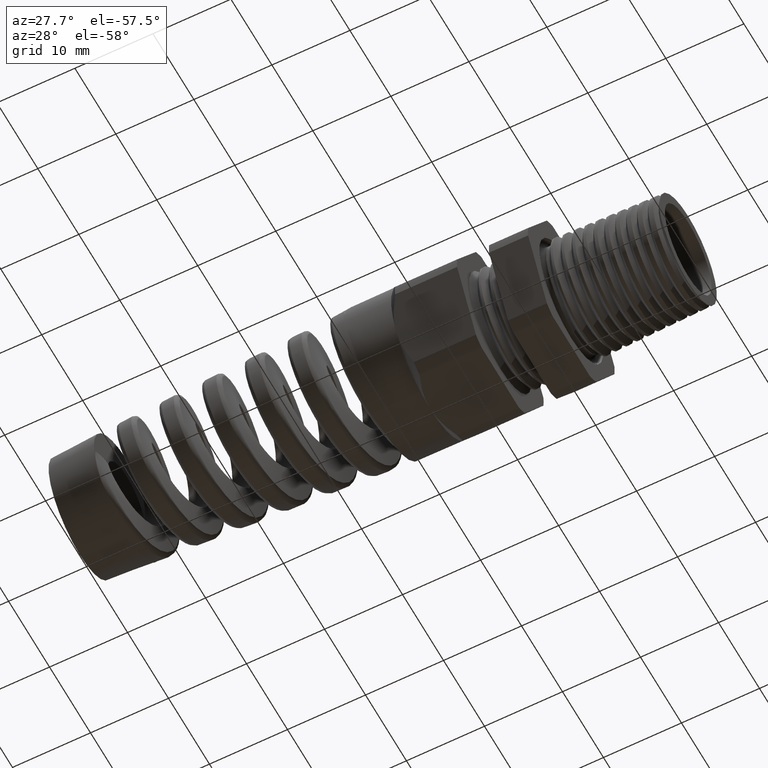
[diagram: clean part render]
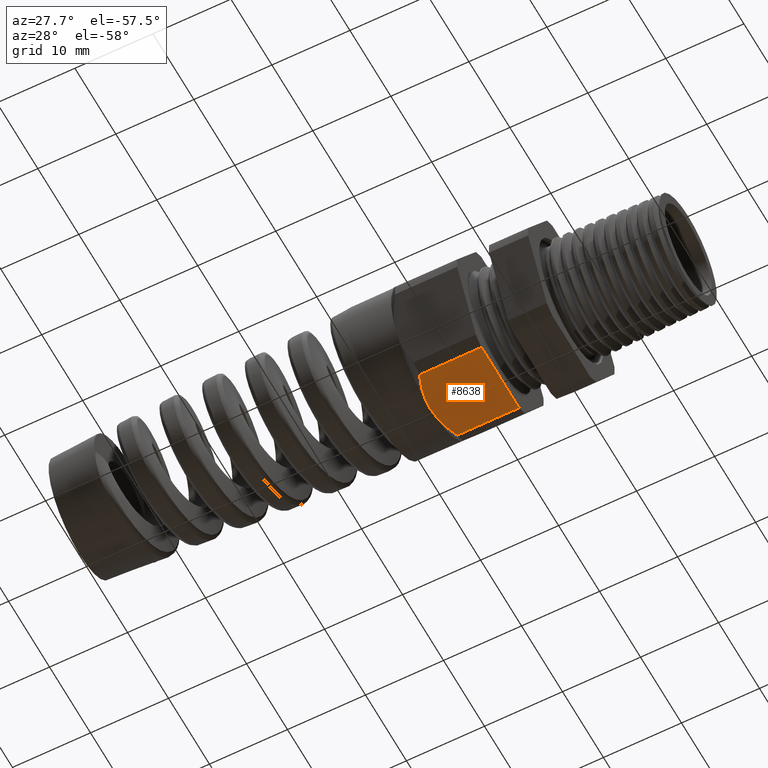
[diagram: same view with one face highlighted and labeled with its STEP entity id]
A machine part, auxiliary view. The second image highlights one B-rep face of the part: STEP entity #8638.
In plain terms, the highlighted planar face has unit normal (0, 0, -1).
Its self-contained STEP definition (entity closure, byte-faithful):
#2919 = CARTESIAN_POINT ( 'NONE',  ( -1.022519685039370100, 0.0000000000000000000, -0.3749999999999998900 ) ) ;
#6075 = DIRECTION ( 'NONE',  ( 0.0000000000000000000, 1.000000000000000000, 0.0000000000000000000 ) ) ;
#6076 = VECTOR ( 'NONE', #6075, 39.37007874015748100 ) ;
#6077 = CARTESIAN_POINT ( 'NONE',  ( -0.6681889763779528300, 0.2999999999999999900, -0.3750000000000000600 ) ) ;
#6078 = LINE ( 'NONE', #6077, #6076 ) ;
#7758 = VERTEX_POINT ( 'NONE', #9804 ) ;
#7759 = EDGE_CURVE ( 'NONE', #7758, #7761, #9803, .T. ) ;
#7761 = VERTEX_POINT ( 'NONE', #9799 ) ;
#8617 = EDGE_LOOP ( 'NONE', ( #8630, #8629, #8636, #8619, #8625 ) ) ;
#8619 = ORIENTED_EDGE ( 'NONE', *, *, #7759, .F. ) ;
#8625 = ORIENTED_EDGE ( 'NONE', *, *, #9258, .F. ) ;
#8627 = EDGE_CURVE ( 'NONE', #11425, #7761, #9838, .T. ) ;
#8628 = VERTEX_POINT ( 'NONE', #9839 ) ;
#8629 = ORIENTED_EDGE ( 'NONE', *, *, #8631, .T. ) ;
#8630 = ORIENTED_EDGE ( 'NONE', *, *, #8632, .T. ) ;
#8631 = EDGE_CURVE ( 'NONE', #8637, #11425, #9829, .T. ) ;
#8632 = EDGE_CURVE ( 'NONE', #8628, #8637, #9828, .T. ) ;
#8636 = ORIENTED_EDGE ( 'NONE', *, *, #8627, .T. ) ;
#8637 = VERTEX_POINT ( 'NONE', #9818 ) ;
#8638 = ADVANCED_FACE ( 'NONE', ( #9817 ), #9816, .T. ) ;
#9258 = EDGE_CURVE ( 'NONE', #8628, #7758, #6078, .T. ) ;
#9560 = DIRECTION ( 'NONE',  ( 0.0000000000000000000, 0.0000000000000000000, -1.000000000000000000 ) ) ;
#9561 = CARTESIAN_POINT ( 'NONE',  ( 0.2800000000000001400, 0.1806628420566886200, -0.3750000000000000600 ) ) ;
#9563 = DIRECTION ( 'NONE',  ( -1.000000000000000000, 0.0000000000000000000, 0.0000000000000000000 ) ) ;
#9799 = CARTESIAN_POINT ( 'NONE',  ( -0.9812696850393701800, 0.1806628420566886200, -0.3749999999999999400 ) ) ;
#9800 = DIRECTION ( 'NONE',  ( -1.000000000000000000, 0.0000000000000000000, 0.0000000000000000000 ) ) ;
#9801 = VECTOR ( 'NONE', #9800, 39.37007874015748100 ) ;
#9802 = CARTESIAN_POINT ( 'NONE',  ( 0.2800000000000001400, 0.1806628420566886200, -0.3749999999999999400 ) ) ;
#9803 = LINE ( 'NONE', #9802, #9801 ) ;
#9804 = CARTESIAN_POINT ( 'NONE',  ( -0.6681889763779528300, 0.1806628420566886200, -0.3749999999999999400 ) ) ;
#9815 = AXIS2_PLACEMENT_3D ( 'NONE', #9561, #9560, #9563 ) ;
#9816 = PLANE ( 'NONE',  #9815 ) ;
#9817 = FACE_OUTER_BOUND ( 'NONE', #8617, .T. ) ;
#9818 = CARTESIAN_POINT ( 'NONE',  ( -0.9812696850393701800, -0.1806628420566885600, -0.3750000000000000600 ) ) ;
#9819 = DIRECTION ( 'NONE',  ( -1.000000000000000000, 0.0000000000000000000, 0.0000000000000000000 ) ) ;
#9820 = VECTOR ( 'NONE', #9819, 39.37007874015748100 ) ;
#9821 = CARTESIAN_POINT ( 'NONE',  ( -1.022519685039370100, 0.0000000000000000000, -0.3749999999999998900 ) ) ;
#9822 = CARTESIAN_POINT ( 'NONE',  ( -1.022519685039370300, -0.03141195411055329500, -0.3750000000000000600 ) ) ;
#9823 = CARTESIAN_POINT ( 'NONE',  ( -1.018537466760090400, -0.06212512060126258000, -0.3749999999999999400 ) ) ;
#9824 = CARTESIAN_POINT ( 'NONE',  ( -1.004130709360642000, -0.1224209746056498000, -0.3750000000000001700 ) ) ;
#9825 = CARTESIAN_POINT ( 'NONE',  ( -0.9936205254308748700, -0.1522063135617433000, -0.3750000000000001100 ) ) ;
#9826 = CARTESIAN_POINT ( 'NONE',  ( -0.9812696850393701800, -0.1806628420566885600, -0.3750000000000000600 ) ) ;
#9827 = CARTESIAN_POINT ( 'NONE',  ( 0.2800000000000001400, -0.1806628420566886200, -0.3750000000000000600 ) ) ;
#9828 = LINE ( 'NONE', #9827, #9820 ) ;
#9829 = B_SPLINE_CURVE_WITH_KNOTS ( 'NONE', 3,
 ( #9826, #9825, #9824, #9823, #9822, #9821 ),
 .UNSPECIFIED., .F., .F.,
 ( 4, 2, 4 ),
 ( 0.006665333265152976700, 0.009014704629390890200, 0.01136407599362880500 ),
 .UNSPECIFIED. ) ;
#9830 = CARTESIAN_POINT ( 'NONE',  ( -0.9812696850393701800, 0.1806628420566886200, -0.3749999999999999400 ) ) ;
#9831 = CARTESIAN_POINT ( 'NONE',  ( -0.9936157931450760900, 0.1522172168218789100, -0.3750000000000000600 ) ) ;
#9832 = CARTESIAN_POINT ( 'NONE',  ( -1.004110972724074900, 0.1224785947535363100, -0.3750000000000000600 ) ) ;
#9833 = CARTESIAN_POINT ( 'NONE',  ( -1.014916584060876300, 0.07729185397029263200, -0.3750000000000000600 ) ) ;
#9834 = CARTESIAN_POINT ( 'NONE',  ( -1.017723071190545800, 0.06207756443688119300, -0.3750000000000001700 ) ) ;
#9835 = CARTESIAN_POINT ( 'NONE',  ( -1.021525385464105100, 0.03130286613836863500, -0.3750000000000001100 ) ) ;
#9836 = CARTESIAN_POINT ( 'NONE',  ( -1.022519685039369900, 0.01568637131276640800, -0.3750000000000000600 ) ) ;
#9837 = CARTESIAN_POINT ( 'NONE',  ( -1.022519685039370100, 0.0000000000000000000, -0.3749999999999998900 ) ) ;
#9838 = B_SPLINE_CURVE_WITH_KNOTS ( 'NONE', 3,
 ( #9837, #9836, #9835, #9834, #9833, #9832, #9831, #9830 ),
 .UNSPECIFIED., .F., .F.,
 ( 4, 2, 2, 4 ),
 ( 0.01136407599362880500, 0.01253729531775341800, 0.01371051464187803000, 0.01605695329012725400 ),
 .UNSPECIFIED. ) ;
#9839 = CARTESIAN_POINT ( 'NONE',  ( -0.6681889763779528300, -0.1806628420566886200, -0.3750000000000000600 ) ) ;
#11425 = VERTEX_POINT ( 'NONE', #2919 ) ;